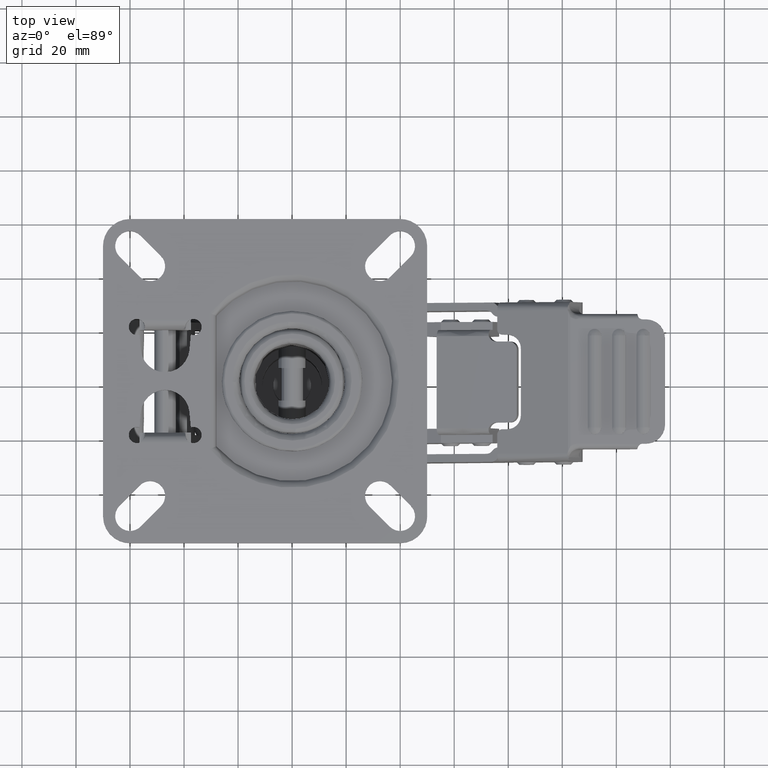
[diagram: clean part render]
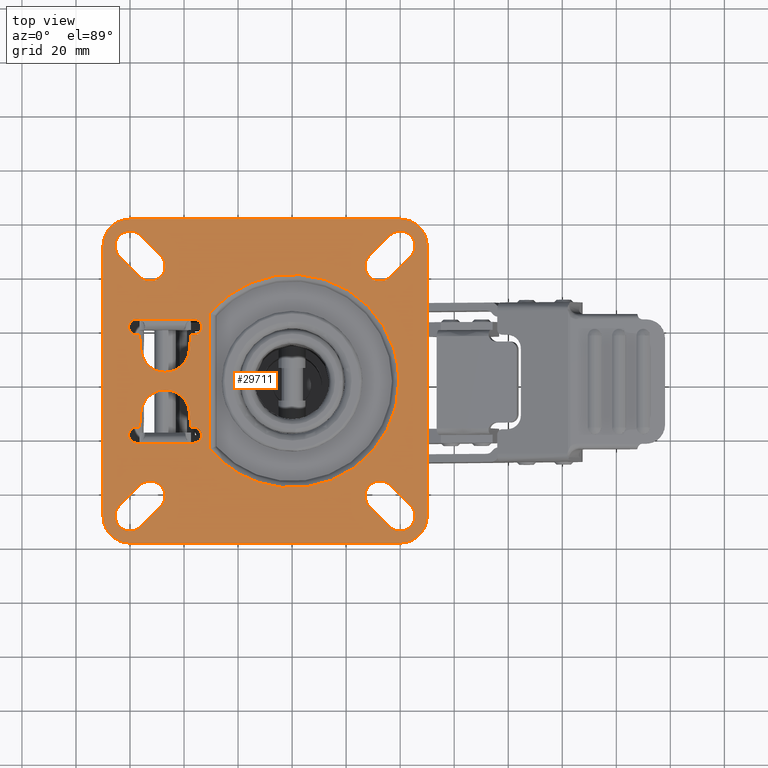
[diagram: same view with one face highlighted and labeled with its STEP entity id]
A machine part, top view. The second image highlights one B-rep face of the part: STEP entity #29711.
In plain terms, the highlighted face is a freeform B-spline surface patch.
Its self-contained STEP definition (entity closure, byte-faithful):
#26121=CARTESIAN_POINT('',(-30.500000000000000,25.099800796022350,-0.000044916666667));
#26122=VERTEX_POINT('',#26121);
#26160=CARTESIAN_POINT('',(-30.500000000000000,-25.099800796022350,-0.000044916666667));
#26161=VERTEX_POINT('',#26160);
#26162=CARTESIAN_POINT('',(-30.500000000000000,-25.099800796022350,-0.000044916666667));
#26163=CARTESIAN_POINT('',(-30.500000000000000,25.099800796022350,-0.000044916666667));
#26164=QUASI_UNIFORM_CURVE('',1,(#26162,#26163),.UNSPECIFIED.,.F.,.U.);
#26165=EDGE_CURVE('',#26161,#26122,#26164,.T.);
#26244=CARTESIAN_POINT('',(39.500000000000000,0.0,-0.000044916666667));
#26245=VERTEX_POINT('',#26244);
#26246=CARTESIAN_POINT('',(39.500000000000000,0.0,-0.000044916666667));
#26247=CARTESIAN_POINT('',(39.500643804984243,-3.027984741864123,-0.000044916666667));
#26248=CARTESIAN_POINT('',(38.902191499938148,-8.200447063530220,-0.000044916666667));
#26249=CARTESIAN_POINT('',(36.846318625051751,-14.586583775481749,-0.000044916666667));
#26250=CARTESIAN_POINT('',(34.370945554938139,-19.706385645750821,-0.000044916666667));
#26251=CARTESIAN_POINT('',(31.508279286180191,-24.033055227459808,-0.000044916666667));
#26252=CARTESIAN_POINT('',(27.909967347821741,-28.107132765118688,-0.000044916666667));
#26253=CARTESIAN_POINT('',(23.339034329519041,-32.100476250536452,-0.000044916666667));
#26254=CARTESIAN_POINT('',(17.826781043387591,-35.482152317503612,-0.000044916666667));
#26255=CARTESIAN_POINT('',(11.345917082828731,-38.018449332625309,-0.000044916666667));
#26256=CARTESIAN_POINT('',(5.401220233328120,-39.286292706634200,-0.000044916666667));
#26257=CARTESIAN_POINT('',(-0.911051504879506,-39.645389663422719,-0.000044916666667));
#26258=CARTESIAN_POINT('',(-7.213334180955010,-39.035564936395950,-0.000044916666667));
#26259=CARTESIAN_POINT('',(-12.951119824771091,-37.453766134183653,-0.000044916666667));
#26260=CARTESIAN_POINT('',(-18.169966797282200,-35.198430345347653,-0.000044916666667));
#26261=CARTESIAN_POINT('',(-22.627021357387630,-32.543338297625212,-0.000044916666667));
#26262=CARTESIAN_POINT('',(-26.949646211866440,-29.040506451069600,-0.000044916666667));
#26263=CARTESIAN_POINT('',(-29.377686718273090,-26.463691047913841,-0.000044916666667));
#26264=CARTESIAN_POINT('',(-30.500000000000000,-25.099800796022350,-0.000044916666667));
#26265=B_SPLINE_CURVE_WITH_KNOTS('',3,(#26246,#26247,#26248,#26249,#26250,#26251,#26252,#26253,#26254,#26255,#26256,#26257,#26258,#26259,#26260,#26261,#26262,#26263,#26264),.UNSPECIFIED.,.F.,.U.,(4,1,1,1,1,1,1,1,1,1,1,1,1,1,1,1,4),(-0.000010695004732,9.083851630180561,15.518240182300159,20.060175454272809,26.116116304531690,31.036571419482460,36.335520777146272,44.283902184497919,50.339634689820961,57.152621312768837,62.451555302032098,69.264440858296098,76.077372014669919,80.240834552089169,86.296771057239738,91.595646800147961,96.894537797639046),.UNSPECIFIED.);
#26266=EDGE_CURVE('',#26245,#26161,#26265,.T.);
#26268=CARTESIAN_POINT('',(-30.500000000000000,25.099800796022350,-0.000044916666667));
#26269=CARTESIAN_POINT('',(-28.576388257780749,27.438284994965340,-0.000044916666667));
#26270=CARTESIAN_POINT('',(-25.010374618706830,30.875561179739471,-0.000044916666667));
#26271=CARTESIAN_POINT('',(-19.404032503882888,34.551563512745481,-0.000044916666667));
#26272=CARTESIAN_POINT('',(-14.945286564519860,36.658464294931143,-0.000044916666667));
#26273=CARTESIAN_POINT('',(-10.518658227149229,38.157207995253302,-0.000044916666667));
#26274=CARTESIAN_POINT('',(-6.444308888374255,39.052339385593797,-0.000044916666667));
#26275=CARTESIAN_POINT('',(-1.797101373324751,39.547124054738809,-0.000044916666667));
#26276=CARTESIAN_POINT('',(3.134189883144237,39.503250939521891,-0.000044916666667));
#26277=CARTESIAN_POINT('',(8.263710005364889,38.739196759135602,-0.000044916666667));
#26278=CARTESIAN_POINT('',(12.760911575462201,37.459479038324083,-0.000044916666667));
#26279=CARTESIAN_POINT('',(17.213610902137798,35.667565269226962,-0.000044916666667));
#26280=CARTESIAN_POINT('',(22.080388274249110,32.963481209102227,-0.000044916666667));
#26281=CARTESIAN_POINT('',(26.645969290174701,29.345684728163040,-0.000044916666667));
#26282=CARTESIAN_POINT('',(30.290831459043659,25.487382486452599,-0.000044916666667));
#26283=CARTESIAN_POINT('',(32.863673098955452,22.046160478720410,-0.000044916666667));
#26284=CARTESIAN_POINT('',(35.252840559804021,18.029551075311520,-0.000044916666667));
#26285=CARTESIAN_POINT('',(37.557558165397083,12.824908846081239,-0.000044916666667));
#26286=CARTESIAN_POINT('',(39.151333546448782,6.560549655672102,-0.000044916666667));
#26287=CARTESIAN_POINT('',(39.500051141017593,2.018617443619596,-0.000044916666667));
#26288=CARTESIAN_POINT('',(39.500000000000000,0.0,-0.000044916666667));
#26289=B_SPLINE_CURVE_WITH_KNOTS('',3,(#26268,#26269,#26270,#26271,#26272,#26273,#26274,#26275,#26276,#26277,#26278,#26279,#26280,#26281,#26282,#26283,#26284,#26285,#26286,#26287,#26288),.UNSPECIFIED.,.F.,.U.,(4,1,1,1,1,1,1,1,1,1,1,1,1,1,1,1,1,1,4),(-0.000010694981427,9.083851630199007,14.761252996703320,20.060175454285769,23.845136974269419,28.765592483372771,32.550557146232897,37.849503357380300,43.526881509721179,48.068811453021489,51.853604375468962,57.909618662151580,64.722509933805867,69.264440858297419,73.806392446578741,77.591358616416954,83.268805663843935,90.838637532402984,96.894537797639018),.UNSPECIFIED.);
#26290=EDGE_CURVE('',#26122,#26245,#26289,.T.);
#27157=CARTESIAN_POINT('',(-36.500000000000000,23.0,-0.000044916666719));
#27158=VERTEX_POINT('',#27157);
#27202=CARTESIAN_POINT('',(-57.500000000000000,23.0,-0.000044916666719));
#27203=VERTEX_POINT('',#27202);
#27204=CARTESIAN_POINT('',(-57.500000000000000,23.0,-0.000044916666719));
#27205=CARTESIAN_POINT('',(-36.500000000000000,23.0,-0.000044916666719));
#27206=QUASI_UNIFORM_CURVE('',1,(#27204,#27205),.UNSPECIFIED.,.F.,.U.);
#27207=EDGE_CURVE('',#27203,#27158,#27206,.T.);
#27585=CARTESIAN_POINT('',(-60.456797437554087,19.492704313764040,-0.000044916666719));
#27586=VERTEX_POINT('',#27585);
#27587=CARTESIAN_POINT('',(-57.500000000000000,23.0,-0.000044916666719));
#27588=CARTESIAN_POINT('',(-57.744777289867322,23.000036206680040,-0.000044916666719));
#27589=CARTESIAN_POINT('',(-58.315990637357253,22.929818454274731,-0.000044916666719));
#27590=CARTESIAN_POINT('',(-59.049712455564368,22.612783331605240,-0.000044916666719));
#27591=CARTESIAN_POINT('',(-59.602705358528063,22.165269914371699,-0.000044916666719));
#27592=CARTESIAN_POINT('',(-60.077828865986817,21.602081167989660,-0.000044916666719));
#27593=CARTESIAN_POINT('',(-60.491515192610130,20.728216219702361,-0.000044916666719));
#27594=CARTESIAN_POINT('',(-60.531002289210818,19.921583390344178,-0.000044916666719));
#27595=CARTESIAN_POINT('',(-60.456797437554087,19.492704313764040,-0.000044916666719));
#27596=B_SPLINE_CURVE_WITH_KNOTS('',3,(#27587,#27588,#27589,#27590,#27591,#27592,#27593,#27594,#27595),.UNSPECIFIED.,.F.,.U.,(4,1,1,1,1,1,4),(0.000000510321392,0.734369649351932,1.713595999579349,2.366428230352935,2.855867144432658,3.916721275928145,5.222294864463336),.UNSPECIFIED.);
#27597=EDGE_CURVE('',#27203,#27586,#27596,.T.);
#27599=CARTESIAN_POINT('',(-56.500019619856097,17.171565938663701,-0.000044916666719));
#27600=VERTEX_POINT('',#27599);
#27601=CARTESIAN_POINT('',(-60.456797437554087,19.492704313764040,-0.000044916666719));
#27602=CARTESIAN_POINT('',(-60.415440331238592,19.251448332278208,-0.000044916666719));
#27603=CARTESIAN_POINT('',(-60.249648512444203,18.700325348360579,-0.000044916666719));
#27604=CARTESIAN_POINT('',(-59.813091595932903,18.030802188340910,-0.000044916666719));
#27605=CARTESIAN_POINT('',(-59.237419319571828,17.525248571750890,-0.000044916666719));
#27606=CARTESIAN_POINT('',(-58.662254260170243,17.208520910652229,-0.000044916666719));
#27607=CARTESIAN_POINT('',(-57.979745843449578,17.007969346868009,-0.000044916666719));
#27608=CARTESIAN_POINT('',(-57.239210724574768,16.977625498877082,-0.000044916666719));
#27609=CARTESIAN_POINT('',(-56.730785517759827,17.089932072488040,-0.000044916666719));
#27610=CARTESIAN_POINT('',(-56.500019619856097,17.171565938663701,-0.000044916666719));
#27611=B_SPLINE_CURVE_WITH_KNOTS('',3,(#27601,#27602,#27603,#27604,#27605,#27606,#27607,#27608,#27609,#27610),.UNSPECIFIED.,.F.,.U.,(4,1,1,1,1,1,1,4),(0.000000510322342,0.734369647868412,1.713595996116194,2.366428225569598,3.019132815234057,3.671915045396088,4.487925716360550,5.222294853906140),.UNSPECIFIED.);
#27612=EDGE_CURVE('',#27586,#27600,#27611,.T.);
#27662=CARTESIAN_POINT('',(-55.960850015711202,11.411250167853600,-0.000044916666719));
#27663=VERTEX_POINT('',#27662);
#27664=CARTESIAN_POINT('',(-55.960850015711202,11.411250167853600,-0.000044916666719));
#27665=CARTESIAN_POINT('',(-56.500019619856097,17.171565938663701,-0.000044916666719));
#27666=QUASI_UNIFORM_CURVE('',1,(#27664,#27665),.UNSPECIFIED.,.F.,.U.);
#27667=EDGE_CURVE('',#27663,#27600,#27666,.T.);
#27703=CARTESIAN_POINT('',(-38.038711106225698,11.416152674455640,-0.000044916666719));
#27704=VERTEX_POINT('',#27703);
#27705=CARTESIAN_POINT('',(-55.960850015711202,11.411250167853600,-0.000044916666719));
#27706=CARTESIAN_POINT('',(-55.877332045027600,10.514587515174620,-0.000044916666719));
#27707=CARTESIAN_POINT('',(-55.539022842168933,9.155116617108458,-0.000044916666719));
#27708=CARTESIAN_POINT('',(-54.523348976783879,7.176631621464953,-0.000044916666719));
#27709=CARTESIAN_POINT('',(-53.316199823723750,5.724730846357304,-0.000044916666719));
#27710=CARTESIAN_POINT('',(-51.511000263882700,4.363188449004921,-0.000044916666719));
#27711=CARTESIAN_POINT('',(-49.713453823383297,3.582737651644084,-0.000044916666719));
#27712=CARTESIAN_POINT('',(-47.694846465338443,3.218468529935531,-0.000044916666719));
#27713=CARTESIAN_POINT('',(-45.953041618902702,3.249053430846921,-0.000044916666719));
#27714=CARTESIAN_POINT('',(-44.255719701032760,3.628006699011685,-0.000044916666719));
#27715=CARTESIAN_POINT('',(-42.813923814303010,4.235162635249475,-0.000044916666719));
#27716=CARTESIAN_POINT('',(-41.464709412538362,5.092285598840877,-0.000044916666719));
#27717=CARTESIAN_POINT('',(-40.364590695370907,6.106773776951530,-0.000044916666719));
#27718=CARTESIAN_POINT('',(-39.387333821372380,7.369932123439047,-0.000044916666719));
#27719=CARTESIAN_POINT('',(-38.484605091503653,9.057786931674739,-0.000044916666719));
#27720=CARTESIAN_POINT('',(-38.121699409809892,10.519453786669720,-0.000044916666719));
#27721=CARTESIAN_POINT('',(-38.038711106225698,11.416152674455640,-0.000044916666719));
#27722=B_SPLINE_CURVE_WITH_KNOTS('',3,(#27705,#27706,#27707,#27708,#27709,#27710,#27711,#27712,#27713,#27714,#27715,#27716,#27717,#27718,#27719,#27720,#27721),.UNSPECIFIED.,.F.,.U.,(4,1,1,1,1,1,1,1,1,1,1,1,1,1,4),(0.000000700351404,2.701471235005325,4.156143720926409,6.649882948167594,8.312358383069032,10.910058189916720,12.468588044273790,14.442663851763740,16.105078608033910,17.663712655628071,19.118391649377589,20.884788466301750,22.131669486974580,23.898072046897550,26.599512618226520),.UNSPECIFIED.);
#27723=EDGE_CURVE('',#27663,#27704,#27722,.T.);
#27761=CARTESIAN_POINT('',(-37.499998487717001,17.171572340581498,-0.000044916666719));
#27762=VERTEX_POINT('',#27761);
#27763=CARTESIAN_POINT('',(-37.499998487717001,17.171572340581498,-0.000044916666719));
#27764=CARTESIAN_POINT('',(-38.038711106225698,11.416152674455640,-0.000044916666719));
#27765=QUASI_UNIFORM_CURVE('',1,(#27763,#27764),.UNSPECIFIED.,.F.,.U.);
#27766=EDGE_CURVE('',#27762,#27704,#27765,.T.);
#27806=CARTESIAN_POINT('',(-33.543204184525862,19.492694859483350,-0.000044916666719));
#27807=VERTEX_POINT('',#27806);
#27808=CARTESIAN_POINT('',(-37.499998487717001,17.171572340581498,-0.000044916666719));
#27809=CARTESIAN_POINT('',(-37.089796944944773,17.025809127465671,-0.000044916666719));
#27810=CARTESIAN_POINT('',(-36.454134421559672,16.948813160919780,-0.000044916666719));
#27811=CARTESIAN_POINT('',(-35.622437361675260,17.109378693465288,-0.000044916666719));
#27812=CARTESIAN_POINT('',(-35.041511436547950,17.351222552590851,-0.000044916666719));
#27813=CARTESIAN_POINT('',(-34.481722690537147,17.744247639131231,-0.000044916666719));
#27814=CARTESIAN_POINT('',(-33.880180031389742,18.419522818351918,-0.000044916666719));
#27815=CARTESIAN_POINT('',(-33.616195966457610,19.063549270519498,-0.000044916666719));
#27816=CARTESIAN_POINT('',(-33.543204184525862,19.492694859483350,-0.000044916666719));
#27817=B_SPLINE_CURVE_WITH_KNOTS('',3,(#27808,#27809,#27810,#27811,#27812,#27813,#27814,#27815,#27816),.UNSPECIFIED.,.F.,.U.,(4,1,1,1,1,1,4),(0.000000510339127,1.305576499835904,1.876781999889007,2.529611396391154,3.182285401727882,3.916728478830332,5.222304468328472),.UNSPECIFIED.);
#27818=EDGE_CURVE('',#27762,#27807,#27817,.T.);
#27820=CARTESIAN_POINT('',(-33.543204184525862,19.492694859483350,-0.000044916666719));
#27821=CARTESIAN_POINT('',(-33.468940793723633,19.921612476870980,-0.000044916666719));
#27822=CARTESIAN_POINT('',(-33.505922858980412,20.672445680616960,-0.000044916666719));
#27823=CARTESIAN_POINT('',(-33.960379398192053,21.704580962588810,-0.000044916666719));
#27824=CARTESIAN_POINT('',(-34.662344288693703,22.451083526043771,-0.000044916666719));
#27825=CARTESIAN_POINT('',(-35.575306163263107,22.905681634357080,-0.000044916666719));
#27826=CARTESIAN_POINT('',(-36.200816532882961,23.000123714136450,-0.000044916666719));
#27827=CARTESIAN_POINT('',(-36.500000000000000,23.0,-0.000044916666719));
#27828=B_SPLINE_CURVE_WITH_KNOTS('',3,(#27820,#27821,#27822,#27823,#27824,#27825,#27826,#27827),.UNSPECIFIED.,.F.,.U.,(4,1,1,1,1,4),(0.000000510327549,1.305576497188877,2.203166600596420,3.345522972011922,4.324751121274442,5.222304457772357),.UNSPECIFIED.);
#27829=EDGE_CURVE('',#27807,#27158,#27828,.T.);
#28044=CARTESIAN_POINT('',(-56.500019619856097,-17.171565938663701,-0.000044916666719));
#28045=VERTEX_POINT('',#28044);
#28046=CARTESIAN_POINT('',(-60.456797439339141,-19.492704324168319,-0.000044916666719));
#28047=VERTEX_POINT('',#28046);
#28048=CARTESIAN_POINT('',(-56.500019619856097,-17.171565938663701,-0.000044916666719));
#28049=CARTESIAN_POINT('',(-56.858960413027873,-17.044251444072600,-0.000044916666719));
#28050=CARTESIAN_POINT('',(-57.434071605273353,-16.958303976589260,-0.000044916666719));
#28051=CARTESIAN_POINT('',(-58.219096245848853,-17.065991553220741,-0.000044916666719));
#28052=CARTESIAN_POINT('',(-58.967263381512623,-17.330338168791730,-0.000044916666719));
#28053=CARTESIAN_POINT('',(-59.722905325331659,-17.892154373228379,-0.000044916666719));
#28054=CARTESIAN_POINT('',(-60.249633024901527,-18.700352230168161,-0.000044916666719));
#28055=CARTESIAN_POINT('',(-60.415440737867613,-19.251446998401601,-0.000044916666719));
#28056=CARTESIAN_POINT('',(-60.456797439339141,-19.492704324168319,-0.000044916666719));
#28057=B_SPLINE_CURVE_WITH_KNOTS('',3,(#28048,#28049,#28050,#28051,#28052,#28053,#28054,#28055,#28056),.UNSPECIFIED.,.F.,.U.,(4,1,1,1,1,1,4),(0.000000510323145,1.142374897671866,1.713595999579982,2.366428230353188,3.508699375205850,4.487925725433088,5.222294864463355),.UNSPECIFIED.);
#28058=EDGE_CURVE('',#28045,#28047,#28057,.T.);
#28060=CARTESIAN_POINT('',(-57.500000000000000,-23.0,-0.000044916666719));
#28061=VERTEX_POINT('',#28060);
#28062=CARTESIAN_POINT('',(-60.456797439339141,-19.492704324168319,-0.000044916666719));
#28063=CARTESIAN_POINT('',(-60.531005273028292,-19.921582243282231,-0.000044916666719));
#28064=CARTESIAN_POINT('',(-60.491512123879502,-20.728217032203350,-0.000044916666719));
#28065=CARTESIAN_POINT('',(-60.077829908390363,-21.602081026716441,-0.000044916666719));
#28066=CARTESIAN_POINT('',(-59.602704741875087,-22.165269874755680,-0.000044916666719));
#28067=CARTESIAN_POINT('',(-59.049714111659839,-22.612782948170612,-0.000044916666719));
#28068=CARTESIAN_POINT('',(-58.315988287550937,-22.929819273592379,-0.000044916666719));
#28069=CARTESIAN_POINT('',(-57.744778790873262,-23.000035842412650,-0.000044916666719));
#28070=CARTESIAN_POINT('',(-57.500000000000000,-23.0,-0.000044916666719));
#28071=B_SPLINE_CURVE_WITH_KNOTS('',3,(#28062,#28063,#28064,#28065,#28066,#28067,#28068,#28069,#28070),.UNSPECIFIED.,.F.,.U.,(4,1,1,1,1,1,4),(0.000000510312669,1.305574096211667,2.366428225564493,2.855867138656168,3.508699368110552,4.487925716359568,5.222294853906152),.UNSPECIFIED.);
#28072=EDGE_CURVE('',#28047,#28061,#28071,.T.);
#28165=CARTESIAN_POINT('',(-55.960850000000001,-11.411250000000001,-0.000044916666719));
#28166=VERTEX_POINT('',#28165);
#28167=CARTESIAN_POINT('',(-55.960850000000001,-11.411250000000001,-0.000044916666719));
#28168=CARTESIAN_POINT('',(-56.500019619856097,-17.171565938663701,-0.000044916666719));
#28169=QUASI_UNIFORM_CURVE('',1,(#28167,#28168),.UNSPECIFIED.,.F.,.U.);
#28170=EDGE_CURVE('',#28166,#28045,#28169,.T.);
#28206=CARTESIAN_POINT('',(-38.039623877238149,-11.406400723898400,-0.000044916666719));
#28207=VERTEX_POINT('',#28206);
#28208=CARTESIAN_POINT('',(-38.039623877238149,-11.406400723898400,-0.000044916666719));
#28209=CARTESIAN_POINT('',(-38.136315744322900,-10.372220166339430,-0.000044916666719));
#28210=CARTESIAN_POINT('',(-38.637999976459113,-8.542037174977791,-0.000044916666719));
#28211=CARTESIAN_POINT('',(-39.995240719490589,-6.464227866364956,-0.000044916666719));
#28212=CARTESIAN_POINT('',(-41.337495256764790,-5.200000073467689,-0.000044916666719));
#28213=CARTESIAN_POINT('',(-42.636654348520473,-4.333300085741981,-0.000044916666719));
#28214=CARTESIAN_POINT('',(-44.124288613713752,-3.656818106828557,-0.000044916666719));
#28215=CARTESIAN_POINT('',(-45.754057130781597,-3.284260441192061,-0.000044916666719));
#28216=CARTESIAN_POINT('',(-47.488645019607972,-3.214629646908382,-0.000044916666719));
#28217=CARTESIAN_POINT('',(-49.108873856666911,-3.440898623363231,-0.000044916666719));
#28218=CARTESIAN_POINT('',(-50.750725015468440,-4.012408917486114,-0.000044916666719));
#28219=CARTESIAN_POINT('',(-52.471258863709991,-4.996266816488658,-0.000044916666719));
#28220=CARTESIAN_POINT('',(-53.921849321247961,-6.364396672731453,-0.000044916666719));
#28221=CARTESIAN_POINT('',(-54.890431999677062,-7.849858748866231,-0.000044916666719));
#28222=CARTESIAN_POINT('',(-55.610227684558602,-9.427382374116020,-0.000044916666719));
#28223=CARTESIAN_POINT('',(-55.883714017307383,-10.583874111845040,-0.000044916666719));
#28224=CARTESIAN_POINT('',(-55.960850000000001,-11.411250000000001,-0.000044916666719));
#28225=B_SPLINE_CURVE_WITH_KNOTS('',3,(#28208,#28209,#28210,#28211,#28212,#28213,#28214,#28215,#28216,#28217,#28218,#28219,#28220,#28221,#28222,#28223,#28224),.UNSPECIFIED.,.F.,.U.,(4,1,1,1,1,1,1,1,1,1,1,1,1,1,4),(0.000000699162729,3.115897145131392,5.608761286712046,7.374508934842893,8.620934842081674,10.282757624647360,12.256321568593840,13.606416946818610,15.476027835381441,17.137846820545160,18.799735003484351,21.396446516609210,23.058279824430748,24.096950710288390,26.589717696527579),.UNSPECIFIED.);
#28226=EDGE_CURVE('',#28207,#28166,#28225,.T.);
#28264=CARTESIAN_POINT('',(-37.500020910843837,-17.171580268440501,-0.000044916666719));
#28265=VERTEX_POINT('',#28264);
#28266=CARTESIAN_POINT('',(-37.500020910843837,-17.171580268440501,-0.000044916666719));
#28267=CARTESIAN_POINT('',(-38.039623877238149,-11.406400723898400,-0.000044916666719));
#28268=QUASI_UNIFORM_CURVE('',1,(#28266,#28267),.UNSPECIFIED.,.F.,.U.);
#28269=EDGE_CURVE('',#28265,#28207,#28268,.T.);
#28310=CARTESIAN_POINT('',(-36.500000000000000,-23.0,-0.000044916666719));
#28311=VERTEX_POINT('',#28310);
#28355=CARTESIAN_POINT('',(-33.543206197236238,-19.492683128668261,-0.000044916666719));
#28356=VERTEX_POINT('',#28355);
#28357=CARTESIAN_POINT('',(-36.500000000000000,-23.0,-0.000044916666719));
#28358=CARTESIAN_POINT('',(-36.119146245005112,-23.000389978729640,-0.000044916666719));
#28359=CARTESIAN_POINT('',(-35.548276198888033,-22.889720783960328,-0.000044916666719));
#28360=CARTESIAN_POINT('',(-34.844037344914327,-22.526518393874721,-0.000044916666719));
#28361=CARTESIAN_POINT('',(-34.226770961655227,-22.027901804351689,-0.000044916666719));
#28362=CARTESIAN_POINT('',(-33.701611931034947,-21.246334223952729,-0.000044916666719));
#28363=CARTESIAN_POINT('',(-33.474404718076102,-20.308777172968739,-0.000044916666719));
#28364=CARTESIAN_POINT('',(-33.501778829101092,-19.733930762826510,-0.000044916666719));
#28365=CARTESIAN_POINT('',(-33.543206197236238,-19.492683128668261,-0.000044916666719));
#28366=B_SPLINE_CURVE_WITH_KNOTS('',3,(#28357,#28358,#28359,#28360,#28361,#28362,#28363,#28364,#28365),.UNSPECIFIED.,.F.,.U.,(4,1,1,1,1,1,4),(0.000000510327795,1.142379600042730,1.713603053535339,2.366437971977095,3.508713817893328,4.487944199391071,5.222316361100254),.UNSPECIFIED.);
#28367=EDGE_CURVE('',#28311,#28356,#28366,.T.);
#28369=CARTESIAN_POINT('',(-33.543206197236238,-19.492683128668261,-0.000044916666719));
#28370=CARTESIAN_POINT('',(-33.584564939603077,-19.251425181806422,-0.000044916666719));
#28371=CARTESIAN_POINT('',(-33.750361037044691,-18.700303445393430,-0.000044916666719));
#28372=CARTESIAN_POINT('',(-34.186930918947823,-18.030779593072570,-0.000044916666719));
#28373=CARTESIAN_POINT('',(-34.762598300047102,-17.525229851404191,-0.000044916666719));
#28374=CARTESIAN_POINT('',(-35.337785592978157,-17.208508758319340,-0.000044916666719));
#28375=CARTESIAN_POINT('',(-36.020285177165157,-17.007961564003821,-0.000044916666719));
#28376=CARTESIAN_POINT('',(-36.760835235655662,-16.977630273630300,-0.000044916666719));
#28377=CARTESIAN_POINT('',(-37.269250825231083,-17.089942003048080,-0.000044916666719));
#28378=CARTESIAN_POINT('',(-37.500020910843837,-17.171580268440501,-0.000044916666719));
#28379=B_SPLINE_CURVE_WITH_KNOTS('',3,(#28369,#28370,#28371,#28372,#28373,#28374,#28375,#28376,#28377,#28378),.UNSPECIFIED.,.F.,.U.,(4,1,1,1,1,1,1,4),(0.000000510331057,0.734372670556544,1.713603050074944,2.366437967196542,3.019145243056645,3.671930160066078,4.487944190320943,5.222316350545357),.UNSPECIFIED.);
#28380=EDGE_CURVE('',#28356,#28265,#28379,.T.);
#28424=CARTESIAN_POINT('',(36.379295205741897,-38.601145205742050,-0.000044916666719));
#28425=VERTEX_POINT('',#28424);
#28426=CARTESIAN_POINT('',(43.898854794280659,-46.120704794280897,-0.000044916666719));
#28427=VERTEX_POINT('',#28426);
#28428=CARTESIAN_POINT('',(36.379295205741897,-38.601145205742050,-0.000044916666719));
#28429=CARTESIAN_POINT('',(43.898854794280659,-46.120704794280897,-0.000044916666719));
#28430=QUASI_UNIFORM_CURVE('',1,(#28428,#28429),.UNSPECIFIED.,.F.,.U.);
#28431=EDGE_CURVE('',#28425,#28427,#28430,.T.);
#28460=CARTESIAN_POINT('',(-48.606693720537400,46.384863731753903,-0.000044916666719));
#28461=VERTEX_POINT('',#28460);
#28462=CARTESIAN_POINT('',(-56.120709996763999,53.898859970657199,-0.000044916666719));
#28463=VERTEX_POINT('',#28462);
#28464=CARTESIAN_POINT('',(-48.606693720537400,46.384863731753903,-0.000044916666719));
#28465=CARTESIAN_POINT('',(-56.120709996763999,53.898859970657199,-0.000044916666719));
#28466=QUASI_UNIFORM_CURVE('',1,(#28464,#28465),.UNSPECIFIED.,.F.,.U.);
#28467=EDGE_CURVE('',#28461,#28463,#28466,.T.);
#28509=CARTESIAN_POINT('',(43.893311437656649,46.115141437656803,-0.000044916666719));
#28510=VERTEX_POINT('',#28509);
#28511=CARTESIAN_POINT('',(43.886971232424152,53.891214913369062,-0.000044916666719));
#28512=VERTEX_POINT('',#28511);
#28513=CARTESIAN_POINT('',(43.893311437656649,46.115141437656803,-0.000044916666719));
#28514=CARTESIAN_POINT('',(44.274734651310347,46.497099011515957,-0.000044916666719));
#28515=CARTESIAN_POINT('',(44.842469679493867,47.264837186394281,-0.000044916666719));
#28516=CARTESIAN_POINT('',(45.328583547105723,48.483940618270069,-0.000044916666719));
#28517=CARTESIAN_POINT('',(45.543948643191243,49.731060296432830,-0.000044916666719));
#28518=CARTESIAN_POINT('',(45.467792872621800,50.954221720453539,-0.000044916666719));
#28519=CARTESIAN_POINT('',(45.007602215884440,52.467884431261702,-0.000044916666719));
#28520=CARTESIAN_POINT('',(44.396764504541871,53.382995293429524,-0.000044916666719));
#28521=CARTESIAN_POINT('',(43.886971232424152,53.891214913369062,-0.000044916666719));
#28522=B_SPLINE_CURVE_WITH_KNOTS('',3,(#28513,#28514,#28515,#28516,#28517,#28518,#28519,#28520,#28521),.UNSPECIFIED.,.F.,.U.,(4,1,1,1,1,1,4),(0.000000081166991,1.619346049148543,2.833912915809830,3.913476567494186,5.397864263453446,6.477468881876646,8.636625145946995),.UNSPECIFIED.);
#28523=EDGE_CURVE('',#28510,#28512,#28522,.T.);
#28525=CARTESIAN_POINT('',(36.110899926999501,53.889099926999499,-0.000044916666719));
#28526=VERTEX_POINT('',#28525);
#28527=CARTESIAN_POINT('',(43.886971232424152,53.891214913369062,-0.000044916666719));
#28528=CARTESIAN_POINT('',(43.632416998859362,54.145545508232523,-0.000044916666719));
#28529=CARTESIAN_POINT('',(43.038185055597360,54.632687207923659,-0.000044916666719));
#28530=CARTESIAN_POINT('',(42.114053232718263,55.111653961094873,-0.000044916666719));
#28531=CARTESIAN_POINT('',(41.121202808879893,55.412345103174722,-0.000044916666719));
#28532=CARTESIAN_POINT('',(39.909946498924697,55.561696801521023,-0.000044916666719));
#28533=CARTESIAN_POINT('',(38.600997054447468,55.383563016316721,-0.000044916666719));
#28534=CARTESIAN_POINT('',(37.223047783750509,54.812382510450277,-0.000044916666719));
#28535=CARTESIAN_POINT('',(36.492441250530362,54.270938438602350,-0.000044916666719));
#28536=CARTESIAN_POINT('',(36.110899926999501,53.889099926999499,-0.000044916666719));
#28537=B_SPLINE_CURVE_WITH_KNOTS('',3,(#28527,#28528,#28529,#28530,#28531,#28532,#28533,#28534,#28535,#28536),.UNSPECIFIED.,.F.,.U.,(4,1,1,1,1,1,1,4),(0.000000081165496,1.079539599692747,2.294108272680384,3.103806273003520,4.183363100029069,5.937655036900166,7.017273251927431,8.636618829330173),.UNSPECIFIED.);
#28538=EDGE_CURVE('',#28512,#28526,#28537,.T.);
#28589=CARTESIAN_POINT('',(-48.610890073000597,-46.389070073000603,-0.000044916666719));
#28590=VERTEX_POINT('',#28589);
#28591=CARTESIAN_POINT('',(-56.110900000000001,-53.889080000000000,-0.000044916666719));
#28592=VERTEX_POINT('',#28591);
#28593=CARTESIAN_POINT('',(-48.610890073000597,-46.389070073000603,-0.000044916666719));
#28594=CARTESIAN_POINT('',(-56.110900000000001,-53.889080000000000,-0.000044916666719));
#28595=QUASI_UNIFORM_CURVE('',1,(#28593,#28594),.UNSPECIFIED.,.F.,.U.);
#28596=EDGE_CURVE('',#28590,#28592,#28595,.T.);
#28625=CARTESIAN_POINT('',(50.0,-50.0,-0.000044916666719));
#28626=VERTEX_POINT('',#28625);
#28627=CARTESIAN_POINT('',(50.0,50.0,-0.000044916666719));
#28628=VERTEX_POINT('',#28627);
#28629=CARTESIAN_POINT('',(50.0,-50.0,-0.000044916666719));
#28630=CARTESIAN_POINT('',(50.0,50.0,-0.000044916666719));
#28631=QUASI_UNIFORM_CURVE('',1,(#28629,#28630),.UNSPECIFIED.,.F.,.U.);
#28632=EDGE_CURVE('',#28626,#28628,#28631,.T.);
#28674=CARTESIAN_POINT('',(-63.893976635839209,53.884174512870018,-0.000044916666719));
#28675=VERTEX_POINT('',#28674);
#28676=CARTESIAN_POINT('',(-56.120709996763999,53.898859970657199,-0.000044916666719));
#28677=CARTESIAN_POINT('',(-56.630175904196683,54.406946717493383,-0.000044916666719));
#28678=CARTESIAN_POINT('',(-57.623191321672422,55.065346674251167,-0.000044916666719));
#28679=CARTESIAN_POINT('',(-59.021142023482099,55.448904047740371,-0.000044916666719));
#28680=CARTESIAN_POINT('',(-60.100337313611227,55.526282574825622,-0.000044916666719));
#28681=CARTESIAN_POINT('',(-61.269186058853542,55.409379206504937,-0.000044916666719));
#28682=CARTESIAN_POINT('',(-62.637647474380273,54.917025821008842,-0.000044916666719));
#28683=CARTESIAN_POINT('',(-63.513110052239682,54.266335056768483,-0.000044916666719));
#28684=CARTESIAN_POINT('',(-63.893976635839209,53.884174512870018,-0.000044916666719));
#28685=B_SPLINE_CURVE_WITH_KNOTS('',3,(#28676,#28677,#28678,#28679,#28680,#28681,#28682,#28683,#28684),.UNSPECIFIED.,.F.,.U.,(4,1,1,1,1,1,4),(0.000000081018682,2.158170474311919,3.507038695006587,4.316338113587264,5.395396172541521,7.014069796821422,8.632676146154982),.UNSPECIFIED.);
#28686=EDGE_CURVE('',#28463,#28675,#28685,.T.);
#28688=CARTESIAN_POINT('',(-63.889080000000000,46.110900000000001,-0.000044916666719));
#28689=VERTEX_POINT('',#28688);
#28690=CARTESIAN_POINT('',(-63.893976635839209,53.884174512870018,-0.000044916666719));
#28691=CARTESIAN_POINT('',(-64.402645793087657,53.375341721987219,-0.000044916666719));
#28692=CARTESIAN_POINT('',(-65.113258057267871,52.306869290476698,-0.000044916666719));
#28693=CARTESIAN_POINT('',(-65.509380087812389,50.719400455273608,-0.000044916666719));
#28694=CARTESIAN_POINT('',(-65.508439236783644,49.273629215738232,-0.000044916666719));
#28695=CARTESIAN_POINT('',(-65.110386491359407,47.686678647271030,-0.000044916666719));
#28696=CARTESIAN_POINT('',(-64.398359587526940,46.619101242598560,-0.000044916666719));
#28697=CARTESIAN_POINT('',(-63.889080000000000,46.110900000000001,-0.000044916666719));
#28698=B_SPLINE_CURVE_WITH_KNOTS('',3,(#28690,#28691,#28692,#28693,#28694,#28695,#28696,#28697),.UNSPECIFIED.,.F.,.U.,(4,1,1,1,1,4),(0.000000081015722,2.158168899748347,3.776800687382766,4.855861746807589,6.474502411594476,8.632669847919502),.UNSPECIFIED.);
#28699=EDGE_CURVE('',#28675,#28689,#28698,.T.);
#28742=CARTESIAN_POINT('',(-56.389080000000000,38.610899999999987,-0.000044916666719));
#28743=VERTEX_POINT('',#28742);
#28744=CARTESIAN_POINT('',(-63.889080000000000,46.110900000000001,-0.000044916666719));
#28745=CARTESIAN_POINT('',(-56.389080000000000,38.610899999999987,-0.000044916666719));
#28746=QUASI_UNIFORM_CURVE('',1,(#28744,#28745),.UNSPECIFIED.,.F.,.U.);
#28747=EDGE_CURVE('',#28689,#28743,#28746,.T.);
#28783=CARTESIAN_POINT('',(-48.613006687264779,38.608797164672339,-0.000044916666719));
#28784=VERTEX_POINT('',#28783);
#28785=CARTESIAN_POINT('',(-56.389080000000000,38.610899999999987,-0.000044916666719));
#28786=CARTESIAN_POINT('',(-56.007541869530449,38.229048454174567,-0.000044916666719));
#28787=CARTESIAN_POINT('',(-55.313460851794723,37.714686245496061,-0.000044916666719));
#28788=CARTESIAN_POINT('',(-54.193089472303328,37.234317890976072,-0.000044916666719));
#28789=CARTESIAN_POINT('',(-53.222934667361358,37.016256963860769,-0.000044916666719));
#28790=CARTESIAN_POINT('',(-52.185257926698419,36.977764090296901,-0.000044916666719));
#28791=CARTESIAN_POINT('',(-51.246361135733878,37.116782502532807,-0.000044916666719));
#28792=CARTESIAN_POINT('',(-49.961236447657981,37.540510914767232,-0.000044916666719));
#28793=CARTESIAN_POINT('',(-49.121744543608628,38.099507954718682,-0.000044916666719));
#28794=CARTESIAN_POINT('',(-48.613006687264779,38.608797164672339,-0.000044916666719));
#28795=B_SPLINE_CURVE_WITH_KNOTS('',3,(#28785,#28786,#28787,#28788,#28789,#28790,#28791,#28792,#28793,#28794),.UNSPECIFIED.,.F.,.U.,(4,1,1,1,1,1,1,4),(0.000000081168208,1.619345965115394,2.564013015441614,3.643588629342734,4.588200363601787,5.667759166561954,6.477468545951448,8.636624698046104),.UNSPECIFIED.);
#28796=EDGE_CURVE('',#28743,#28784,#28795,.T.);
#28798=CARTESIAN_POINT('',(-48.613006687264779,38.608797164672339,-0.000044916666719));
#28799=CARTESIAN_POINT('',(-48.230963744640881,38.990132671242733,-0.000044916666719));
#28800=CARTESIAN_POINT('',(-47.661976640133261,39.756947610262152,-0.000044916666719));
#28801=CARTESIAN_POINT('',(-47.173917424004230,40.975255714776701,-0.000044916666719));
#28802=CARTESIAN_POINT('',(-46.940816742233963,42.311061998400319,-0.000044916666719));
#28803=CARTESIAN_POINT('',(-47.068435601003522,43.809004290236402,-0.000044916666719));
#28804=CARTESIAN_POINT('',(-47.676339077934863,45.279796558204367,-0.000044916666719));
#28805=CARTESIAN_POINT('',(-48.288905168425238,46.066529583090087,-0.000044916666719));
#28806=CARTESIAN_POINT('',(-48.606693720537400,46.384863731753903,-0.000044916666719));
#28807=B_SPLINE_CURVE_WITH_KNOTS('',3,(#28798,#28799,#28800,#28801,#28802,#28803,#28804,#28805,#28806),.UNSPECIFIED.,.F.,.U.,(4,1,1,1,1,1,4),(0.000000081164428,1.619344780792295,2.833910696199417,3.913473502302284,5.667755021324522,7.287172595634333,8.636618381416243),.UNSPECIFIED.);
#28808=EDGE_CURVE('',#28784,#28461,#28807,.T.);
#28847=CARTESIAN_POINT('',(28.610900000000001,46.389099999999999,-0.000044916666719));
#28848=VERTEX_POINT('',#28847);
#28849=CARTESIAN_POINT('',(36.110899926999501,53.889099926999499,-0.000044916666719));
#28850=CARTESIAN_POINT('',(28.610900000000001,46.389099999999999,-0.000044916666719));
#28851=QUASI_UNIFORM_CURVE('',1,(#28849,#28850),.UNSPECIFIED.,.F.,.U.);
#28852=EDGE_CURVE('',#28526,#28848,#28851,.T.);
#28888=CARTESIAN_POINT('',(28.613013772018459,38.608800079697453,-0.000044916666719));
#28889=VERTEX_POINT('',#28888);
#28890=CARTESIAN_POINT('',(28.610900000000001,46.389099999999999,-0.000044916666719));
#28891=CARTESIAN_POINT('',(28.356253495444790,46.134511633946452,-0.000044916666719));
#28892=CARTESIAN_POINT('',(27.868512395685219,45.540079647620857,-0.000044916666719));
#28893=CARTESIAN_POINT('',(27.305370593508009,44.454701786993077,-0.000044916666719));
#28894=CARTESIAN_POINT('',(27.019174651944081,43.310787974984841,-0.000044916666719));
#28895=CARTESIAN_POINT('',(26.971138612673808,42.001424438331163,-0.000044916666719));
#28896=CARTESIAN_POINT('',(27.211223180874342,40.796606350353308,-0.000044916666719));
#28897=CARTESIAN_POINT('',(27.792069839662030,39.570251679884919,-0.000044916666719));
#28898=CARTESIAN_POINT('',(28.294486732795011,38.926840796374783,-0.000044916666719));
#28899=CARTESIAN_POINT('',(28.613013772018459,38.608800079697453,-0.000044916666719));
#28900=B_SPLINE_CURVE_WITH_KNOTS('',3,(#28890,#28891,#28892,#28893,#28894,#28895,#28896,#28897,#28898,#28899),.UNSPECIFIED.,.F.,.U.,(4,1,1,1,1,1,1,4),(0.000000081381907,1.080287102686774,2.295696886601223,3.646109229360116,4.591374449715685,6.211857085690458,7.292219164944739,8.642599442503673),.UNSPECIFIED.);
#28901=EDGE_CURVE('',#28848,#28889,#28900,.T.);
#28903=CARTESIAN_POINT('',(36.393311437656649,38.615141437656753,-0.000044916666719));
#28904=VERTEX_POINT('',#28903);
#28905=CARTESIAN_POINT('',(28.613013772018459,38.608800079697453,-0.000044916666719));
#28906=CARTESIAN_POINT('',(28.867744326878029,38.354293035010521,-0.000044916666719));
#28907=CARTESIAN_POINT('',(29.462423332460521,37.866851417956852,-0.000044916666719));
#28908=CARTESIAN_POINT('',(30.387306492552799,37.387743945396629,-0.000044916666719));
#28909=CARTESIAN_POINT('',(31.380953943092319,37.087136541627068,-0.000044916666719));
#28910=CARTESIAN_POINT('',(32.323714901334213,36.971574356178351,-0.000044916666719));
#28911=CARTESIAN_POINT('',(33.360810428284331,37.036185101198193,-0.000044916666719));
#28912=CARTESIAN_POINT('',(34.369718239374052,37.289814283558869,-0.000044916666719));
#28913=CARTESIAN_POINT('',(35.432294064920619,37.793686205916977,-0.000044916666719));
#28914=CARTESIAN_POINT('',(36.075460752152530,38.296412562602910,-0.000044916666719));
#28915=CARTESIAN_POINT('',(36.393311437656649,38.615141437656753,-0.000044916666719));
#28916=B_SPLINE_CURVE_WITH_KNOTS('',3,(#28905,#28906,#28907,#28908,#28909,#28910,#28911,#28912,#28913,#28914,#28915),.UNSPECIFIED.,.F.,.U.,(4,1,1,1,1,1,1,1,4),(0.000000081384227,1.080287110198420,2.295696902562693,3.105955612385836,4.186259980278775,5.131520955911155,6.211857128875122,7.292219215640315,8.642599502586645),.UNSPECIFIED.);
#28917=EDGE_CURVE('',#28889,#28904,#28916,.T.);
#28963=CARTESIAN_POINT('',(36.393311437656649,38.615141437656753,-0.000044916666719));
#28964=CARTESIAN_POINT('',(43.893311437656649,46.115141437656803,-0.000044916666719));
#28965=QUASI_UNIFORM_CURVE('',1,(#28963,#28964),.UNSPECIFIED.,.F.,.U.);
#28966=EDGE_CURVE('',#28904,#28510,#28965,.T.);
#28996=CARTESIAN_POINT('',(-48.610889942321123,-38.610890057678922,-0.000044916666719));
#28997=VERTEX_POINT('',#28996);
#28998=CARTESIAN_POINT('',(-48.610890073000597,-46.389070073000603,-0.000044916666719));
#28999=CARTESIAN_POINT('',(-48.228942760809190,-46.007397971611802,-0.000044916666719));
#29000=CARTESIAN_POINT('',(-47.551629230020247,-45.093870192961077,-0.000044916666719));
#29001=CARTESIAN_POINT('',(-47.047542074877377,-43.628777127702783,-0.000044916666719));
#29002=CARTESIAN_POINT('',(-46.970134567883854,-42.363464540708783,-0.000044916666719));
#29003=CARTESIAN_POINT('',(-47.097203930962237,-41.333580295276597,-0.000044916666719));
#29004=CARTESIAN_POINT('',(-47.490586770231197,-40.035338130402792,-0.000044916666719));
#29005=CARTESIAN_POINT('',(-48.101239794931303,-39.119576121293292,-0.000044916666719));
#29006=CARTESIAN_POINT('',(-48.610889942321123,-38.610890057678922,-0.000044916666719));
#29007=B_SPLINE_CURVE_WITH_KNOTS('',3,(#28998,#28999,#29000,#29001,#29002,#29003,#29004,#29005,#29006),.UNSPECIFIED.,.F.,.U.,(4,1,1,1,1,1,4),(0.000000081267812,1.619904301614379,3.374863233997240,4.589782381815368,5.399725157624696,6.479701981300298,8.639602611813380),.UNSPECIFIED.);
#29008=EDGE_CURVE('',#28590,#28997,#29007,.T.);
#29010=CARTESIAN_POINT('',(-56.389069999999997,-38.610890000000012,-0.000044916666719));
#29011=VERTEX_POINT('',#29010);
#29012=CARTESIAN_POINT('',(-48.610889942321123,-38.610890057678922,-0.000044916666719));
#29013=CARTESIAN_POINT('',(-49.056041116594002,-38.165049898533837,-0.000044916666719));
#29014=CARTESIAN_POINT('',(-49.915144630705321,-37.561028572510523,-0.000044916666719));
#29015=CARTESIAN_POINT('',(-51.242280147860008,-37.104522049131987,-0.000044916666719));
#29016=CARTESIAN_POINT('',(-52.409008179442758,-36.960639163309267,-0.000044916666719));
#29017=CARTESIAN_POINT('',(-53.536592613988141,-37.057762951481777,-0.000044916666719));
#29018=CARTESIAN_POINT('',(-54.964601291958843,-37.490645493835082,-0.000044916666719));
#29019=CARTESIAN_POINT('',(-55.880389337691007,-38.101220537724338,-0.000044916666719));
#29020=CARTESIAN_POINT('',(-56.389069999999997,-38.610890000000012,-0.000044916666719));
#29021=B_SPLINE_CURVE_WITH_KNOTS('',3,(#29012,#29013,#29014,#29015,#29016,#29017,#29018,#29019,#29020),.UNSPECIFIED.,.F.,.U.,(4,1,1,1,1,1,4),(0.000000081211907,1.889902960244695,3.104878599359650,4.184808381732843,5.399725178691532,6.479702006630559,8.639602645576172),.UNSPECIFIED.);
#29022=EDGE_CURVE('',#28997,#29011,#29021,.T.);
#29066=CARTESIAN_POINT('',(-63.889079757885007,-46.110899757884887,-0.000044916666719));
#29067=VERTEX_POINT('',#29066);
#29068=CARTESIAN_POINT('',(-63.889079757885007,-46.110899757884887,-0.000044916666719));
#29069=CARTESIAN_POINT('',(-56.389069999999997,-38.610890000000012,-0.000044916666719));
#29070=QUASI_UNIFORM_CURVE('',1,(#29068,#29069),.UNSPECIFIED.,.F.,.U.);
#29071=EDGE_CURVE('',#29067,#29011,#29070,.T.);
#29107=CARTESIAN_POINT('',(-63.889080142236139,-53.889079857763889,-0.000044916666719));
#29108=VERTEX_POINT('',#29107);
#29109=CARTESIAN_POINT('',(-63.889079757885007,-46.110899757884887,-0.000044916666719));
#29110=CARTESIAN_POINT('',(-64.143622787183219,-46.365410162240899,-0.000044916666719));
#29111=CARTESIAN_POINT('',(-64.688691858160169,-47.029464932376563,-0.000044916666719));
#29112=CARTESIAN_POINT('',(-65.226430067896700,-48.131201720765141,-0.000044916666719));
#29113=CARTESIAN_POINT('',(-65.543582004512771,-49.543009653163800,-0.000044916666719));
#29114=CARTESIAN_POINT('',(-65.494918295212287,-50.863529297816797,-0.000044916666719));
#29115=CARTESIAN_POINT('',(-65.009242587681683,-52.464561074596041,-0.000044916666719));
#29116=CARTESIAN_POINT('',(-64.398822088332992,-53.380457493754129,-0.000044916666719));
#29117=CARTESIAN_POINT('',(-63.889080142236139,-53.889079857763889,-0.000044916666719));
#29118=B_SPLINE_CURVE_WITH_KNOTS('',3,(#29109,#29110,#29111,#29112,#29113,#29114,#29115,#29116,#29117),.UNSPECIFIED.,.F.,.U.,(4,1,1,1,1,1,4),(0.000000081166396,1.079912544031444,2.564897118832763,3.644844967355239,5.399725199681680,6.479702031868061,8.639602679213811),.UNSPECIFIED.);
#29119=EDGE_CURVE('',#29067,#29108,#29118,.T.);
#29121=CARTESIAN_POINT('',(-63.889080142236139,-53.889079857763889,-0.000044916666719));
#29122=CARTESIAN_POINT('',(-63.507405758513009,-54.271049440826829,-0.000044916666719));
#29123=CARTESIAN_POINT('',(-62.739985177031947,-54.839780365857379,-0.000044916666719));
#29124=CARTESIAN_POINT('',(-61.520917136723220,-55.327183953388769,-0.000044916666719));
#29125=CARTESIAN_POINT('',(-60.184467806557372,-55.559362539975403,-0.000044916666719));
#29126=CARTESIAN_POINT('',(-58.686113564305941,-55.430421847389219,-0.000044916666719));
#29127=CARTESIAN_POINT('',(-57.215355795574013,-54.820945746174772,-0.000044916666719));
#29128=CARTESIAN_POINT('',(-56.429014412374492,-54.207302038553813,-0.000044916666719));
#29129=CARTESIAN_POINT('',(-56.110900000000001,-53.889080000000000,-0.000044916666719));
#29130=B_SPLINE_CURVE_WITH_KNOTS('',3,(#29121,#29122,#29123,#29124,#29125,#29126,#29127,#29128,#29129),.UNSPECIFIED.,.F.,.U.,(4,1,1,1,1,1,4),(0.000000081134200,1.619904320470422,2.834889949022137,3.914825772968516,5.669713464437082,7.289690649833394,8.639602712976270),.UNSPECIFIED.);
#29131=EDGE_CURVE('',#29108,#28592,#29130,.T.);
#29178=CARTESIAN_POINT('',(40.0,-60.0,-0.000044916666719));
#29179=VERTEX_POINT('',#29178);
#29180=CARTESIAN_POINT('',(40.0,-60.0,-0.000044916666719));
#29181=CARTESIAN_POINT('',(41.145473427396809,-60.000817923801492,-0.000044916666719));
#29182=CARTESIAN_POINT('',(43.190224268567533,-59.644601916771570,-0.000044916666719));
#29183=CARTESIAN_POINT('',(45.718545715439959,-58.332852928849690,-0.000044916666719));
#29184=CARTESIAN_POINT('',(47.467409187095171,-56.766826484628972,-0.000044916666719));
#29185=CARTESIAN_POINT('',(48.767732401939668,-54.967968637781119,-0.000044916666719));
#29186=CARTESIAN_POINT('',(49.738815575309850,-52.740512011120153,-0.000044916666719));
#29187=CARTESIAN_POINT('',(50.000443905651892,-50.981785873500598,-0.000044916666719));
#29188=CARTESIAN_POINT('',(50.0,-50.0,-0.000044916666719));
#29189=B_SPLINE_CURVE_WITH_KNOTS('',3,(#29180,#29181,#29182,#29183,#29184,#29185,#29186,#29187,#29188),.UNSPECIFIED.,.F.,.U.,(4,1,1,1,1,1,4),(0.000000252979229,3.436135820327314,6.135977466397309,8.467568877769839,10.431102929837071,12.762823105766801,15.708061828767320),.UNSPECIFIED.);
#29190=EDGE_CURVE('',#29179,#28626,#29189,.T.);
#29220=CARTESIAN_POINT('',(-60.000008726646307,-59.999999999996213,-0.000044916666719));
#29221=VERTEX_POINT('',#29220);
#29222=CARTESIAN_POINT('',(-60.000008726646307,-59.999999999996213,-0.000044916666719));
#29223=CARTESIAN_POINT('',(40.0,-60.0,-0.000044916666719));
#29224=QUASI_UNIFORM_CURVE('',1,(#29222,#29223),.UNSPECIFIED.,.F.,.U.);
#29225=EDGE_CURVE('',#29221,#29179,#29224,.T.);
#29257=CARTESIAN_POINT('',(-70.0,-50.0,-0.000044916666719));
#29258=VERTEX_POINT('',#29257);
#29259=CARTESIAN_POINT('',(-70.0,-50.0,-0.000044916666719));
#29260=CARTESIAN_POINT('',(-70.000882332827260,-51.145534161243553,-0.000044916666719));
#29261=CARTESIAN_POINT('',(-69.737051044029542,-52.658450944664132,-0.000044916666719));
#29262=CARTESIAN_POINT('',(-68.814250923330448,-54.848231745626869,-0.000044916666719));
#29263=CARTESIAN_POINT('',(-67.769922302730805,-56.432227536700488,-0.000044916666719));
#29264=CARTESIAN_POINT('',(-66.340791377117966,-57.792472407359227,-0.000044916666719));
#29265=CARTESIAN_POINT('',(-64.677403850968432,-58.919126993095801,-0.000044916666719));
#29266=CARTESIAN_POINT('',(-62.617943928975308,-59.772017211167679,-0.000044916666719));
#29267=CARTESIAN_POINT('',(-60.859041340328048,-60.000234922139100,-0.000044916666719));
#29268=CARTESIAN_POINT('',(-60.000008726646307,-59.999999999996213,-0.000044916666719));
#29269=B_SPLINE_CURVE_WITH_KNOTS('',3,(#29259,#29260,#29261,#29262,#29263,#29264,#29265,#29266,#29267,#29268),.UNSPECIFIED.,.F.,.U.,(4,1,1,1,1,1,1,4),(0.000000254467055,3.436134745906299,4.540623594455379,7.117734754771885,9.081158302166642,10.431099662545860,13.130985822873610,15.708056910252861),.UNSPECIFIED.);
#29270=EDGE_CURVE('',#29258,#29221,#29269,.T.);
#29301=CARTESIAN_POINT('',(-69.999999999998607,49.999994764012200,-0.000044916666719));
#29302=VERTEX_POINT('',#29301);
#29303=CARTESIAN_POINT('',(-69.999999999998607,49.999994764012200,-0.000044916666719));
#29304=CARTESIAN_POINT('',(-70.0,-50.0,-0.000044916666719));
#29305=QUASI_UNIFORM_CURVE('',1,(#29303,#29304),.UNSPECIFIED.,.F.,.U.);
#29306=EDGE_CURVE('',#29302,#29258,#29305,.T.);
#29338=CARTESIAN_POINT('',(-60.0,60.0,-0.000044916666719));
#29339=VERTEX_POINT('',#29338);
#29340=CARTESIAN_POINT('',(-60.0,60.0,-0.000044916666719));
#29341=CARTESIAN_POINT('',(-60.654492731124272,60.000087585225373,-0.000044916666719));
#29342=CARTESIAN_POINT('',(-61.799809265644683,59.887087135928120,-0.000044916666719));
#29343=CARTESIAN_POINT('',(-63.816070662183378,59.329477639882121,-0.000044916666719));
#29344=CARTESIAN_POINT('',(-65.790056556867739,58.289921887180107,-0.000044916666719));
#29345=CARTESIAN_POINT('',(-67.519546608894558,56.702492701243983,-0.000044916666719));
#29346=CARTESIAN_POINT('',(-68.831987620088697,54.863341620322892,-0.000044916666719));
#29347=CARTESIAN_POINT('',(-69.760984183290972,52.658794745276907,-0.000044916666719));
#29348=CARTESIAN_POINT('',(-70.000275397389274,50.899949529101612,-0.000044916666719));
#29349=CARTESIAN_POINT('',(-69.999999999998607,49.999994764012200,-0.000044916666719));
#29350=B_SPLINE_CURVE_WITH_KNOTS('',3,(#29340,#29341,#29342,#29343,#29344,#29345,#29346,#29347,#29348,#29349),.UNSPECIFIED.,.F.,.U.,(4,1,1,1,1,1,1,4),(0.000000252011601,1.963469627131110,3.436136464925102,6.258735456219911,8.590325447009763,10.431104890188511,13.008257140240961,15.708064779874601),.UNSPECIFIED.);
#29351=EDGE_CURVE('',#29339,#29302,#29350,.T.);
#29381=CARTESIAN_POINT('',(40.0,60.0,-0.000044916666719));
#29382=VERTEX_POINT('',#29381);
#29383=CARTESIAN_POINT('',(40.0,60.0,-0.000044916666719));
#29384=CARTESIAN_POINT('',(-60.0,60.0,-0.000044916666719));
#29385=QUASI_UNIFORM_CURVE('',1,(#29383,#29384),.UNSPECIFIED.,.F.,.U.);
#29386=EDGE_CURVE('',#29382,#29339,#29385,.T.);
#29418=CARTESIAN_POINT('',(50.0,50.0,-0.000044916666719));
#29419=CARTESIAN_POINT('',(50.000226216298749,50.859041330553218,-0.000044916666719));
#29420=CARTESIAN_POINT('',(49.809054856082781,52.331532479295113,-0.000044916666719));
#29421=CARTESIAN_POINT('',(49.105160526429387,54.261167713538967,-0.000044916666719));
#29422=CARTESIAN_POINT('',(48.154161854526073,55.892894513589120,-0.000044916666719));
#29423=CARTESIAN_POINT('',(46.720430232976639,57.534987621998262,-0.000044916666719));
#29424=CARTESIAN_POINT('',(44.931664378852638,58.794575424042932,-0.000044916666719));
#29425=CARTESIAN_POINT('',(42.617722584297219,59.753106020669982,-0.000044916666719));
#29426=CARTESIAN_POINT('',(41.022711103839917,60.000439624359231,-0.000044916666719));
#29427=CARTESIAN_POINT('',(40.0,60.0,-0.000044916666719));
#29428=B_SPLINE_CURVE_WITH_KNOTS('',3,(#29418,#29419,#29420,#29421,#29422,#29423,#29424,#29425,#29426,#29427),.UNSPECIFIED.,.F.,.U.,(4,1,1,1,1,1,1,4),(0.000000252970223,2.577072392018767,4.417893247780995,6.135977466394310,8.222177636595760,10.922006537435809,12.640086327700590,15.708061828767301),.UNSPECIFIED.);
#29429=EDGE_CURVE('',#28628,#29382,#29428,.T.);
#29467=CARTESIAN_POINT('',(28.606010949330059,-38.615807908020038,-0.000044916666719));
#29468=VERTEX_POINT('',#29467);
#29469=CARTESIAN_POINT('',(36.379295205741897,-38.601145205742050,-0.000044916666719));
#29470=CARTESIAN_POINT('',(35.869833128739231,-38.093095532750631,-0.000044916666719));
#29471=CARTESIAN_POINT('',(34.800435172409529,-37.383888647704943,-0.000044916666719));
#29472=CARTESIAN_POINT('',(33.212491308641283,-36.989649827885771,-0.000044916666719));
#29473=CARTESIAN_POINT('',(31.947468511670419,-36.992263160791197,-0.000044916666719));
#29474=CARTESIAN_POINT('',(30.973020295101389,-37.187862349749267,-0.000044916666719));
#29475=CARTESIAN_POINT('',(29.795945130698222,-37.643950671165364,-0.000044916666719));
#29476=CARTESIAN_POINT('',(29.050245573464821,-38.169755883067928,-0.000044916666719));
#29477=CARTESIAN_POINT('',(28.606010949330059,-38.615807908020038,-0.000044916666719));
#29478=B_SPLINE_CURVE_WITH_KNOTS('',3,(#29469,#29470,#29471,#29472,#29473,#29474,#29475,#29476,#29477),.UNSPECIFIED.,.F.,.U.,(4,1,1,1,1,1,4),(0.000000081023714,2.158175929553958,3.776812989510597,4.855877563789964,5.934959475511356,6.744306558516950,8.632697967083164),.UNSPECIFIED.);
#29479=EDGE_CURVE('',#28425,#29468,#29478,.T.);
#29481=CARTESIAN_POINT('',(28.610900000000001,-46.389099999999999,-0.000044916666719));
#29482=VERTEX_POINT('',#29481);
#29483=CARTESIAN_POINT('',(28.606010949330059,-38.615807908020038,-0.000044916666719));
#29484=CARTESIAN_POINT('',(28.256691382924000,-38.965883198299437,-0.000044916666719));
#29485=CARTESIAN_POINT('',(27.598225355852399,-39.833263756506973,-0.000044916666719));
#29486=CARTESIAN_POINT('',(27.091843778139260,-41.199473596388799,-0.000044916666719));
#29487=CARTESIAN_POINT('',(26.964609324267322,-42.503490942200322,-0.000044916666719));
#29488=CARTESIAN_POINT('',(27.071474505204939,-43.582452817924690,-0.000044916666719));
#29489=CARTESIAN_POINT('',(27.491491637974999,-44.965834085640473,-0.000044916666719));
#29490=CARTESIAN_POINT('',(28.101554438728019,-45.880889089509687,-0.000044916666719));
#29491=CARTESIAN_POINT('',(28.610900000000001,-46.389099999999999,-0.000044916666719));
#29492=B_SPLINE_CURVE_WITH_KNOTS('',3,(#29483,#29484,#29485,#29486,#29487,#29488,#29489,#29490,#29491),.UNSPECIFIED.,.F.,.U.,(4,1,1,1,1,1,4),(0.000000081027288,1.483717731947250,3.237278075626893,4.316345874921901,5.395405874141233,6.474518777269947,8.632691668818449),.UNSPECIFIED.);
#29493=EDGE_CURVE('',#29468,#29482,#29492,.T.);
#29537=CARTESIAN_POINT('',(36.110900000000001,-53.889099999999999,-0.000044916666719));
#29538=VERTEX_POINT('',#29537);
#29539=CARTESIAN_POINT('',(36.110900000000001,-53.889099999999999,-0.000044916666719));
#29540=CARTESIAN_POINT('',(28.610900000000001,-46.389099999999999,-0.000044916666719));
#29541=QUASI_UNIFORM_CURVE('',1,(#29539,#29540),.UNSPECIFIED.,.F.,.U.);
#29542=EDGE_CURVE('',#29538,#29482,#29541,.T.);
#29578=CARTESIAN_POINT('',(43.884196550775258,-53.893984603073143,-0.000044916666719));
#29579=VERTEX_POINT('',#29578);
#29580=CARTESIAN_POINT('',(36.110900000000001,-53.889099999999999,-0.000044916666719));
#29581=CARTESIAN_POINT('',(36.460523777848373,-54.238882500021823,-0.000044916666719));
#29582=CARTESIAN_POINT('',(37.327124388870203,-54.898341090265212,-0.000044916666719));
#29583=CARTESIAN_POINT('',(38.692635270140180,-55.406578025994712,-0.000044916666719));
#29584=CARTESIAN_POINT('',(39.996520059051313,-55.535333787146492,-0.000044916666719));
#29585=CARTESIAN_POINT('',(41.255553731155373,-55.412534636924597,-0.000044916666719));
#29586=CARTESIAN_POINT('',(42.625299397204451,-54.923727362726787,-0.000044916666719));
#29587=CARTESIAN_POINT('',(43.502344503457458,-54.275153550020413,-0.000044916666719));
#29588=CARTESIAN_POINT('',(43.884196550775258,-53.893984603073143,-0.000044916666719));
#29589=B_SPLINE_CURVE_WITH_KNOTS('',3,(#29580,#29581,#29582,#29583,#29584,#29585,#29586,#29587,#29588),.UNSPECIFIED.,.F.,.U.,(4,1,1,1,1,1,4),(0.000000081033351,1.483718814405934,3.237280437501419,4.316349024050322,5.395409810503313,7.014087526416033,8.632697967066926),.UNSPECIFIED.);
#29590=EDGE_CURVE('',#29538,#29579,#29589,.T.);
#29592=CARTESIAN_POINT('',(43.884196550775258,-53.893984603073143,-0.000044916666719));
#29593=CARTESIAN_POINT('',(44.394145872096537,-53.386386844617320,-0.000044916666719));
#29594=CARTESIAN_POINT('',(45.005429744723827,-52.472156721870583,-0.000044916666719));
#29595=CARTESIAN_POINT('',(45.427138346595378,-51.089267945282252,-0.000044916666719));
#29596=CARTESIAN_POINT('',(45.535352181868049,-50.010458319091363,-0.000044916666719));
#29597=CARTESIAN_POINT('',(45.414122123759270,-48.751241889346453,-0.000044916666719));
#29598=CARTESIAN_POINT('',(44.926960758006750,-47.380925204943537,-0.000044916666719));
#29599=CARTESIAN_POINT('',(44.279578438067482,-46.503012664309942,-0.000044916666719));
#29600=CARTESIAN_POINT('',(43.898854794280659,-46.120704794280897,-0.000044916666719));
#29601=B_SPLINE_CURVE_WITH_KNOTS('',3,(#29592,#29593,#29594,#29595,#29596,#29597,#29598,#29599,#29600),.UNSPECIFIED.,.F.,.U.,(4,1,1,1,1,1,4),(0.000000081027013,2.158174354983068,3.237278075620671,4.316345874913860,5.395405874131368,7.014082409030669,8.632691668802536),.UNSPECIFIED.);
#29602=EDGE_CURVE('',#29579,#28427,#29601,.T.);
#29635=CARTESIAN_POINT('',(-75.993999767416724,65.993999767416710,-0.000044916666667));
#29636=CARTESIAN_POINT('',(55.994002986067528,65.993999767416710,-0.000044916666667));
#29637=CARTESIAN_POINT('',(-75.993999767416724,-65.994002986067542,-0.000044916666667));
#29638=CARTESIAN_POINT('',(55.994002986067528,-65.994002986067542,-0.000044916666667));
#29639=B_SPLINE_SURFACE_WITH_KNOTS('',1,1,((#29635,#29637),(#29636,#29638)),.UNSPECIFIED.,.F.,.F.,.U.,(2,2),(2,2),(0.0,131.988002753484210),(0.0,131.988002753484210),.UNSPECIFIED.);
#29640=ORIENTED_EDGE('',*,*,#29429,.T.);
#29641=ORIENTED_EDGE('',*,*,#29386,.T.);
#29642=ORIENTED_EDGE('',*,*,#29351,.T.);
#29643=ORIENTED_EDGE('',*,*,#29306,.T.);
#29644=ORIENTED_EDGE('',*,*,#29270,.T.);
#29645=ORIENTED_EDGE('',*,*,#29225,.T.);
#29646=ORIENTED_EDGE('',*,*,#29190,.T.);
#29647=ORIENTED_EDGE('',*,*,#28632,.T.);
#29648=EDGE_LOOP('',(#29640,#29641,#29642,#29643,#29644,#29645,#29646,#29647));
#29649=FACE_OUTER_BOUND('',#29648,.T.);
#29650=CARTESIAN_POINT('',(-36.500000000000000,-23.0,-0.000044916666719));
#29651=CARTESIAN_POINT('',(-57.500000000000000,-23.0,-0.000044916666719));
#29652=QUASI_UNIFORM_CURVE('',1,(#29650,#29651),.UNSPECIFIED.,.F.,.U.);
#29653=EDGE_CURVE('',#28311,#28061,#29652,.T.);
#29654=ORIENTED_EDGE('',*,*,#29653,.T.);
#29655=ORIENTED_EDGE('',*,*,#28072,.F.);
#29656=ORIENTED_EDGE('',*,*,#28058,.F.);
#29657=ORIENTED_EDGE('',*,*,#28170,.F.);
#29658=ORIENTED_EDGE('',*,*,#28226,.F.);
#29659=ORIENTED_EDGE('',*,*,#28269,.F.);
#29660=ORIENTED_EDGE('',*,*,#28380,.F.);
#29661=ORIENTED_EDGE('',*,*,#28367,.F.);
#29662=EDGE_LOOP('',(#29654,#29655,#29656,#29657,#29658,#29659,#29660,#29661));
#29663=FACE_BOUND('',#29662,.T.);
#29664=ORIENTED_EDGE('',*,*,#29542,.T.);
#29665=ORIENTED_EDGE('',*,*,#29493,.F.);
#29666=ORIENTED_EDGE('',*,*,#29479,.F.);
#29667=ORIENTED_EDGE('',*,*,#28431,.T.);
#29668=ORIENTED_EDGE('',*,*,#29602,.F.);
#29669=ORIENTED_EDGE('',*,*,#29590,.F.);
#29670=EDGE_LOOP('',(#29664,#29665,#29666,#29667,#29668,#29669));
#29671=FACE_BOUND('',#29670,.T.);
#29672=ORIENTED_EDGE('',*,*,#26165,.T.);
#29673=ORIENTED_EDGE('',*,*,#26290,.T.);
#29674=ORIENTED_EDGE('',*,*,#26266,.T.);
#29675=EDGE_LOOP('',(#29672,#29673,#29674));
#29676=FACE_BOUND('',#29675,.T.);
#29677=ORIENTED_EDGE('',*,*,#29071,.T.);
#29678=ORIENTED_EDGE('',*,*,#29022,.F.);
#29679=ORIENTED_EDGE('',*,*,#29008,.F.);
#29680=ORIENTED_EDGE('',*,*,#28596,.T.);
#29681=ORIENTED_EDGE('',*,*,#29131,.F.);
#29682=ORIENTED_EDGE('',*,*,#29119,.F.);
#29683=EDGE_LOOP('',(#29677,#29678,#29679,#29680,#29681,#29682));
#29684=FACE_BOUND('',#29683,.T.);
#29685=ORIENTED_EDGE('',*,*,#28966,.F.);
#29686=ORIENTED_EDGE('',*,*,#28917,.F.);
#29687=ORIENTED_EDGE('',*,*,#28901,.F.);
#29688=ORIENTED_EDGE('',*,*,#28852,.F.);
#29689=ORIENTED_EDGE('',*,*,#28538,.F.);
#29690=ORIENTED_EDGE('',*,*,#28523,.F.);
#29691=EDGE_LOOP('',(#29685,#29686,#29687,#29688,#29689,#29690));
#29692=FACE_BOUND('',#29691,.T.);
#29693=ORIENTED_EDGE('',*,*,#28747,.F.);
#29694=ORIENTED_EDGE('',*,*,#28699,.F.);
#29695=ORIENTED_EDGE('',*,*,#28686,.F.);
#29696=ORIENTED_EDGE('',*,*,#28467,.F.);
#29697=ORIENTED_EDGE('',*,*,#28808,.F.);
#29698=ORIENTED_EDGE('',*,*,#28796,.F.);
#29699=EDGE_LOOP('',(#29693,#29694,#29695,#29696,#29697,#29698));
#29700=FACE_BOUND('',#29699,.T.);
#29701=ORIENTED_EDGE('',*,*,#27207,.T.);
#29702=ORIENTED_EDGE('',*,*,#27829,.F.);
#29703=ORIENTED_EDGE('',*,*,#27818,.F.);
#29704=ORIENTED_EDGE('',*,*,#27766,.T.);
#29705=ORIENTED_EDGE('',*,*,#27723,.F.);
#29706=ORIENTED_EDGE('',*,*,#27667,.T.);
#29707=ORIENTED_EDGE('',*,*,#27612,.F.);
#29708=ORIENTED_EDGE('',*,*,#27597,.F.);
#29709=EDGE_LOOP('',(#29701,#29702,#29703,#29704,#29705,#29706,#29707,#29708));
#29710=FACE_BOUND('',#29709,.T.);
#29711=ADVANCED_FACE('',(#29649,#29663,#29671,#29676,#29684,#29692,#29700,#29710),#29639,.F.);